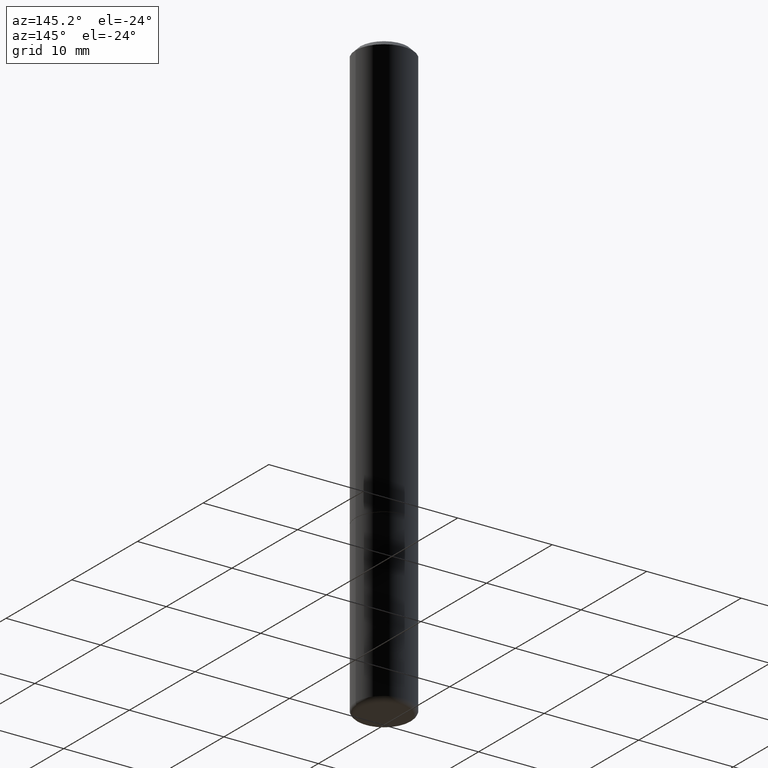
[diagram: clean part render]
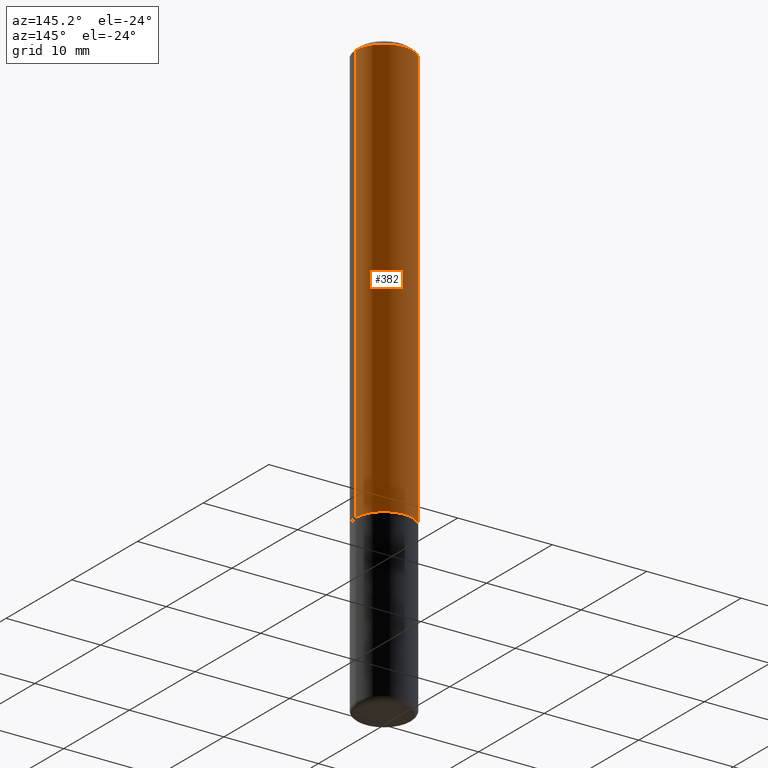
[diagram: same view with one face highlighted and labeled with its STEP entity id]
A machine part, auxiliary view. The second image highlights one B-rep face of the part: STEP entity #382.
In plain terms, the highlighted cylindrical surface (edge-blend (fillet) strip) has radius 2.9997 mm, axis along (-0, 0, 1).
Its self-contained STEP definition (entity closure, byte-faithful):
#21 = DIRECTION ( 'NONE',  ( 1.000000000000000000, -6.982962677686266711E-15, 0.000000000000000000 ) ) ;
#30 = DIRECTION ( 'NONE',  ( -2.445468806185136877E-29, 3.491481338843145188E-15, 1.000000000000000000 ) ) ;
#34 = EDGE_CURVE ( 'NONE', #308, #306, #119, .T. ) ;
#42 = ORIENTED_EDGE ( 'NONE', *, *, #220, .F. ) ;
#60 = CARTESIAN_POINT ( 'NONE',  ( 0.1181000000000001354, -8.246878922347490515E-16, 5.758764772215007447E-30 ) ) ;
#68 = AXIS2_PLACEMENT_3D ( 'NONE', #343, #283, #215 ) ;
#76 = CIRCLE ( 'NONE', #397, 0.1181000000000000383 ) ;
#81 = FACE_OUTER_BOUND ( 'NONE', #302, .T. ) ;
#86 = CYLINDRICAL_SURFACE ( 'NONE', #68, 0.1181000000000001354 ) ;
#87 = CARTESIAN_POINT ( 'NONE',  ( 4.890937612370288923E-31, -6.982962677686312563E-17, -0.02000000000000006287 ) ) ;
#119 = LINE ( 'NONE', #124, #164 ) ;
#124 = CARTESIAN_POINT ( 'NONE',  ( -0.1181000000000001354, 8.391509709326792818E-16, -5.809262341591050090E-30 ) ) ;
#161 = DIRECTION ( 'NONE',  ( -2.445468806185136597E-29, 3.491481338843145583E-15, 1.000000000000000000 ) ) ;
#164 = VECTOR ( 'NONE', #259, 39.37007874015748143 ) ;
#171 = ORIENTED_EDGE ( 'NONE', *, *, #201, .F. ) ;
#173 = AXIS2_PLACEMENT_3D ( 'NONE', #260, #354, #413 ) ;
#201 = EDGE_CURVE ( 'NONE', #275, #244, #325, .T. ) ;
#209 = ORIENTED_EDGE ( 'NONE', *, *, #34, .T. ) ;
#215 = DIRECTION ( 'NONE',  ( 1.000000000000000000, -6.982962677686266711E-15, 4.876176775795936353E-29 ) ) ;
#220 = EDGE_CURVE ( 'NONE', #244, #306, #76, .T. ) ;
#226 = CARTESIAN_POINT ( 'NONE',  ( 0.1181000000000000383, -8.800544403136812319E-16, -0.02000000000000006287 ) ) ;
#244 = VERTEX_POINT ( 'NONE', #226 ) ;
#259 = DIRECTION ( 'NONE',  ( -2.445468806185136877E-29, 3.491481338843145188E-15, 1.000000000000000000 ) ) ;
#260 = CARTESIAN_POINT ( 'NONE',  ( 4.329947068231403160E-29, -6.182016858555674562E-15, -1.770600000000000174 ) ) ;
#265 = VECTOR ( 'NONE', #30, 39.37007874015748143 ) ;
#275 = VERTEX_POINT ( 'NONE', #387 ) ;
#283 = DIRECTION ( 'NONE',  ( -2.445468806185136597E-29, 3.491481338843145583E-15, 1.000000000000000000 ) ) ;
#297 = EDGE_CURVE ( 'NONE', #275, #308, #361, .T. ) ;
#302 = EDGE_LOOP ( 'NONE', ( #369, #209, #42, #171 ) ) ;
#306 = VERTEX_POINT ( 'NONE', #321 ) ;
#308 = VERTEX_POINT ( 'NONE', #347 ) ;
#321 = CARTESIAN_POINT ( 'NONE',  ( -0.1181000000000000383, 7.548582654578852602E-16, -0.02000000000000006287 ) ) ;
#325 = LINE ( 'NONE', #60, #265 ) ;
#343 = CARTESIAN_POINT ( 'NONE',  ( 0.000000000000000000, 0.000000000000000000, 0.000000000000000000 ) ) ;
#347 = CARTESIAN_POINT ( 'NONE',  ( -0.1181000000000002187, -2.286772271733587183E-15, -1.770600000000000174 ) ) ;
#354 = DIRECTION ( 'NONE',  ( -2.445468806185136597E-29, 3.491481338843145583E-15, 1.000000000000000000 ) ) ;
#361 = CIRCLE ( 'NONE', #173, 0.1181000000000002187 ) ;
#369 = ORIENTED_EDGE ( 'NONE', *, *, #297, .T. ) ;
#382 = ADVANCED_FACE ( 'NONE', ( #81 ), #86, .T. ) ;
#387 = CARTESIAN_POINT ( 'NONE',  ( 0.1181000000000002187, -7.006704750790424403E-15, -1.770600000000000174 ) ) ;
#397 = AXIS2_PLACEMENT_3D ( 'NONE', #87, #161, #21 ) ;
#413 = DIRECTION ( 'NONE',  ( 1.000000000000000000, -6.982962677686267499E-15, 0.000000000000000000 ) ) ;